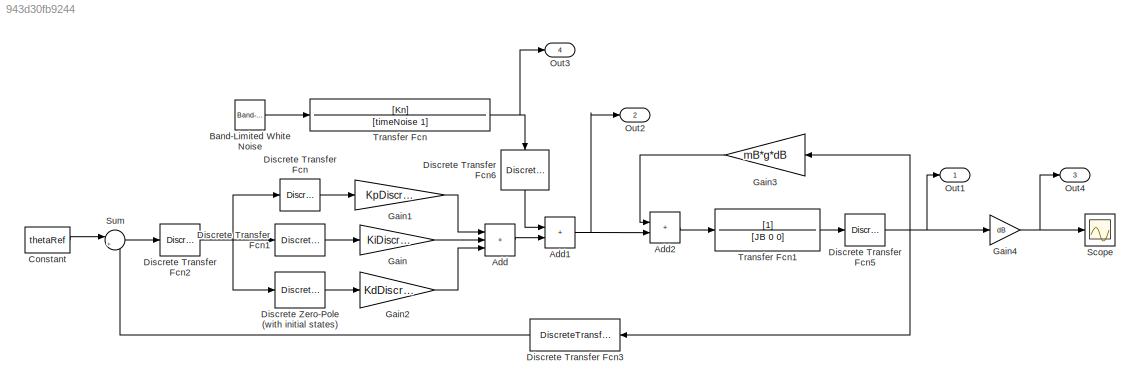
MODEL slx_943d30fb9244
KIND model
CONFIG AbsTol = auto
CONFIG EnableMultiTasking = off
CONFIG FixedStep = 0.01
CONFIG MaxStep = auto
CONFIG MinStep = auto
CONFIG RelTol = 1e-3
CONFIG SampleTimeConstraint = Unconstrained
CONFIG Solver = ode5
CONFIG SolverName = ode5
CONFIG StartTime = 0.0
CONFIG StopTime = 800
BLOCK [Sum] Add
  IconShape = rectangular
  Inputs = +++
  Ports = [3, 1]
BLOCK [Sum] Add1
  IconShape = rectangular
  Ports = [2, 1]
BLOCK [Sum] Add2
  IconShape = rectangular
  Ports = [2, 1]
BLOCK [Reference] Band-Limited White Noise  REF=simulink/Sources/Band-Limited
White Noise
  Ports = [0, 1]
  SourceBlock = simulink/Sources/Band-Limited\nWhite Noise
  SourceProductBaseCode = SL
  SourceType = Band-Limited White Noise.
BLOCK [Constant] Constant
  Value = thetaRef
BLOCK [DiscreteTransferFcn] Discrete Transfer Fcn
  Denominator = [1]
  InputPortMap = u0
  Ports = [1, 1]
BLOCK [DiscreteTransferFcn] Discrete Transfer Fcn1
  Denominator = [1 -1]
  InputPortMap = u0
  Numerator = [1 0]
  Ports = [1, 1]
BLOCK [DiscreteTransferFcn] Discrete Transfer Fcn2
  Denominator = [1]
  InputPortMap = u0
  Ports = [1, 1]
  SampleTime = humanSamplingTime
BLOCK [DiscreteTransferFcn] Discrete Transfer Fcn3
  Denominator = [1 0 0 0 0 0 0 0 0 0 0 0 0 0 0 0 0 0]
  InputPortMap = u0
  NameLocation = top
  Ports = [1, 1]
BLOCK [DiscreteTransferFcn] Discrete Transfer Fcn5
  Denominator = [1]
  InputPortMap = u0
  Ports = [1, 1]
  SampleTime = humanSamplingTime
BLOCK [DiscreteTransferFcn] Discrete Transfer Fcn6
  Denominator = [1]
  InputPortMap = u0
  NameLocation = left
  Ports = [1, 1]
  SampleTime = humanSamplingTime
BLOCK [Reference] Discrete Zero-Pole (with initial states)  REF=simulink_extras/Additional
Discrete/Discrete
Zero-Pole
(with initial states)
  Ports = [1, 1]
  SourceBlock = simulink_extras/Additional\nDiscrete/Discrete\nZero-Pole\n(with initial states)
  SourceProductBaseCode = SL
  SourceType = Discrete Zero-Pole with Initial States
BLOCK [Gain] Gain
  Gain = KiDiscrete
BLOCK [Gain] Gain1
  Gain = KpDiscrete
BLOCK [Gain] Gain2
  Gain = KdDiscrete
BLOCK [Gain] Gain3
  Gain = mB*g*dB
  NameLocation = top
BLOCK [Gain] Gain4
  Gain = dB
BLOCK [Outport] Out1
  SignalName = thetaStarOut
BLOCK [Outport] Out2
  Port = 2
  SignalName = controlOutput
BLOCK [Outport] Out3
  Port = 4
  SignalName = disturb
BLOCK [Outport] Out4
  Port = 3
  SignalName = disp
BLOCK [Scope] Scope
  Floating = off
  NumInputPorts = 1
  Ports = [1]
  ScopeSpecificationString = Simulink.scopes.TimeScopeBlockCfg('CurrentConfiguration', extmgr.ConfigurationSet(extmgr.Configuration('Core','General UI',true,'FigureColor',[1 1 1]),extmgr.Configuration('Core','Source UI',true),extmgr.Configuration('Sources','WiredSimulink',true),extmgr.Configuration('Visuals','Time Domain',true,'SerializedDisplays',{struct('MinYLimReal','-0.00541','MaxYLimReal','0.00568','YLabelReal','','MinYL...<+1574ch>
BLOCK [Sum] Sum
  Inputs = |+-
  Ports = [2, 1]
BLOCK [TransferFcn] Transfer Fcn
  Denominator = [timeNoise 1]
  Numerator = [Kn]
BLOCK [TransferFcn] Transfer Fcn1
  Denominator = [JB 0 0]
NET Add1:1 -> Add2:2, Out2:1
LINE Add2:1 -> Transfer Fcn1:1
LINE Add:1 -> Add1:2
LINE Band-Limited White Noise:1 -> Transfer Fcn:1
LINE Constant:1 -> Sum:1
LINE Discrete Transfer Fcn1:1 -> Gain:1
NET Discrete Transfer Fcn2:1 -> Discrete Transfer Fcn1:1, Discrete Transfer Fcn:1, Discrete Zero-Pole (with initial states):1
LINE Discrete Transfer Fcn3:1 -> Sum:2
NET Discrete Transfer Fcn5:1 -> Discrete Transfer Fcn3:1, Gain3:1, Gain4:1, Out1:1
LINE Discrete Transfer Fcn6:1 -> Add1:1
LINE Discrete Transfer Fcn:1 -> Gain1:1
LINE Discrete Zero-Pole (with initial states):1 -> Gain2:1
LINE Gain1:1 -> Add:1
LINE Gain2:1 -> Add:3
LINE Gain3:1 -> Add2:1
NET Gain4:1 -> Out4:1, Scope:1
LINE Gain:1 -> Add:2
LINE Sum:1 -> Discrete Transfer Fcn2:1
LINE Transfer Fcn1:1 -> Discrete Transfer Fcn5:1
NET Transfer Fcn:1 -> Discrete Transfer Fcn6:1, Out3:1
note: NET lines group one-source signal fan-out (src -> all destinations, sorted); 1:1 wires keep LINE
